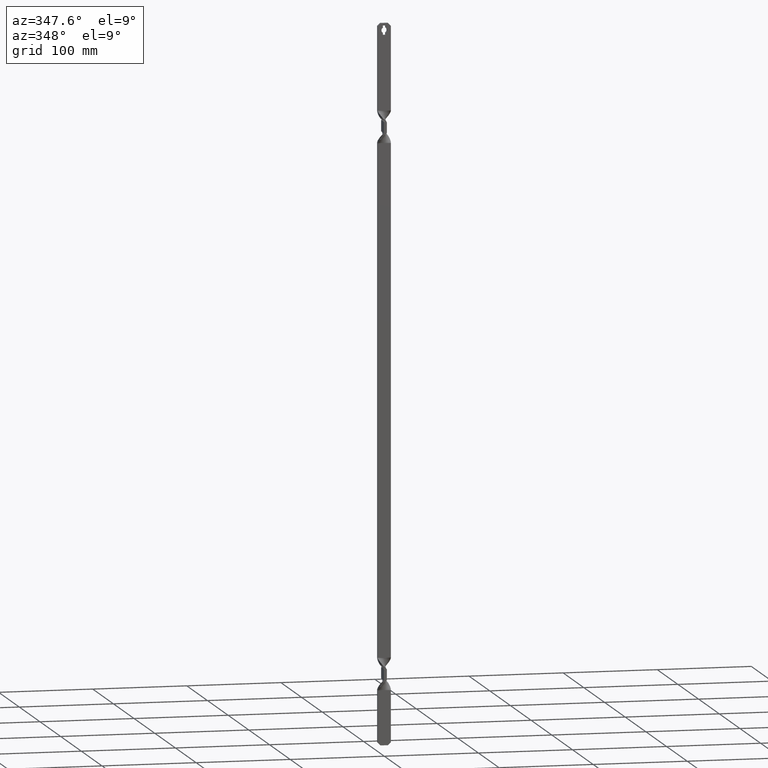
[diagram: clean part render]
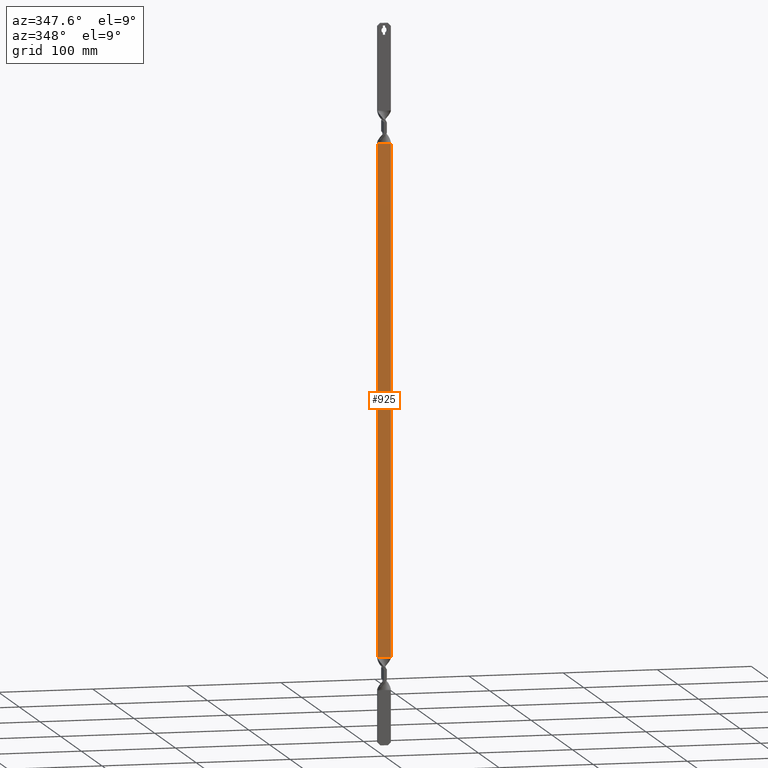
[diagram: same view with one face highlighted and labeled with its STEP entity id]
A machine part, auxiliary view. The second image highlights one B-rep face of the part: STEP entity #925.
In plain terms, the highlighted face is a freeform B-spline surface patch.
Its self-contained STEP definition (entity closure, byte-faithful):
#571=CARTESIAN_POINT('',(-7.000000000000110,-5.681219E-014,632.500000000000000));
#572=VERTEX_POINT('',#571);
#742=CARTESIAN_POINT('',(6.999999999999890,5.681219E-014,632.500000000000000));
#743=VERTEX_POINT('',#742);
#815=CARTESIAN_POINT('',(6.999999999999890,5.681219E-014,632.500000000000000));
#816=CARTESIAN_POINT('',(-7.000000000000110,-5.681219E-014,632.500000000000000));
#817=QUASI_UNIFORM_CURVE('',1,(#815,#816),.UNSPECIFIED.,.F.,.U.);
#818=EDGE_CURVE('',#743,#572,#817,.T.);
#898=CARTESIAN_POINT('',(-7.699299972865393,5.684342E-014,65.527001046624719));
#899=CARTESIAN_POINT('',(7.699300348374436,5.684342E-014,65.527001046624719));
#900=CARTESIAN_POINT('',(-7.699299972865394,5.684342E-014,659.473013437303850));
#901=CARTESIAN_POINT('',(7.699300348374436,5.684342E-014,659.473013437303850));
#902=B_SPLINE_SURFACE_WITH_KNOTS('',1,1,((#898,#900),(#899,#901)),.UNSPECIFIED.,.F.,.F.,.U.,(2,2),(2,2),(0.0,15.398600321239829),(0.0,593.946012390679130),.UNSPECIFIED.);
#903=CARTESIAN_POINT('',(-7.000000000000110,-5.684342E-014,92.500000000000000));
#904=VERTEX_POINT('',#903);
#905=CARTESIAN_POINT('',(6.999999999999890,5.681219E-014,92.500000000001094));
#906=VERTEX_POINT('',#905);
#907=CARTESIAN_POINT('',(-7.000000000000110,-5.684342E-014,92.500000000000000));
#908=CARTESIAN_POINT('',(6.999999999999890,5.681219E-014,92.500000000001094));
#909=QUASI_UNIFORM_CURVE('',1,(#907,#908),.UNSPECIFIED.,.F.,.U.);
#910=EDGE_CURVE('',#904,#906,#909,.T.);
#911=ORIENTED_EDGE('',*,*,#910,.T.);
#912=CARTESIAN_POINT('',(6.999999999999890,5.681219E-014,632.500000000000000));
#913=CARTESIAN_POINT('',(6.999999999999890,5.681219E-014,92.500000000001094));
#914=QUASI_UNIFORM_CURVE('',1,(#912,#913),.UNSPECIFIED.,.F.,.U.);
#915=EDGE_CURVE('',#743,#906,#914,.T.);
#916=ORIENTED_EDGE('',*,*,#915,.F.);
#917=ORIENTED_EDGE('',*,*,#818,.T.);
#918=CARTESIAN_POINT('',(-7.000000000000110,-5.681219E-014,632.500000000000000));
#919=CARTESIAN_POINT('',(-7.000000000000110,-5.684342E-014,92.500000000000000));
#920=QUASI_UNIFORM_CURVE('',1,(#918,#919),.UNSPECIFIED.,.F.,.U.);
#921=EDGE_CURVE('',#572,#904,#920,.T.);
#922=ORIENTED_EDGE('',*,*,#921,.T.);
#923=EDGE_LOOP('',(#911,#916,#917,#922));
#924=FACE_OUTER_BOUND('',#923,.T.);
#925=ADVANCED_FACE('',(#924),#902,.T.);